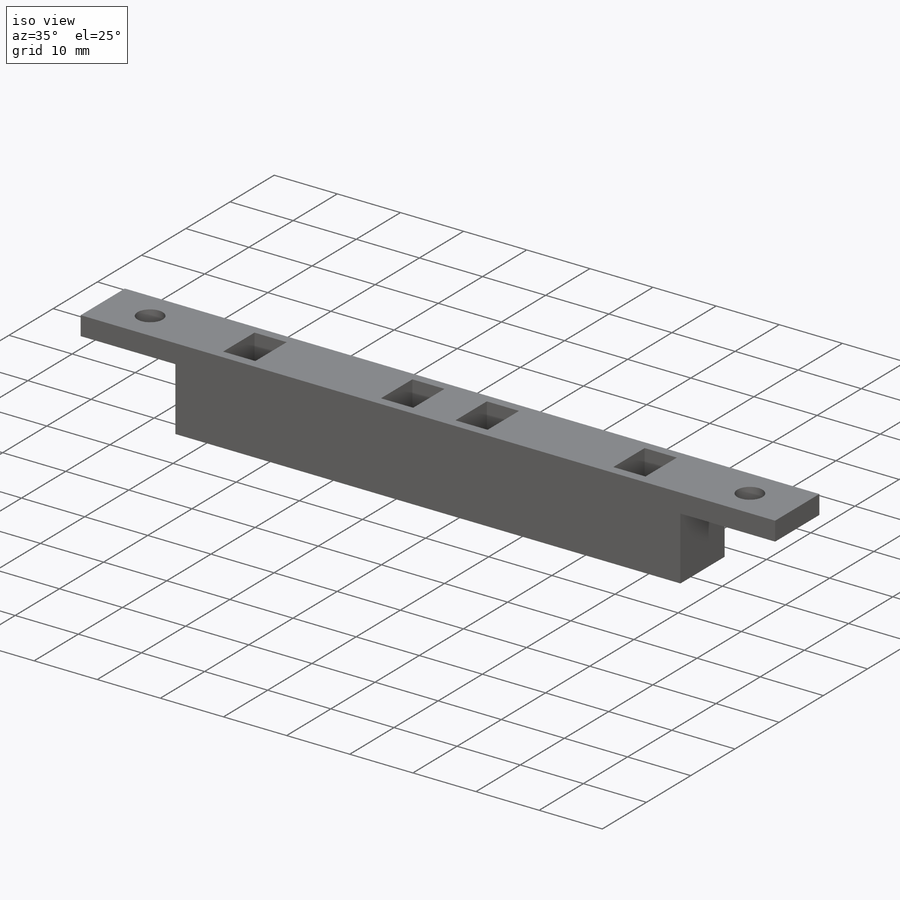
[diagram: iso view]
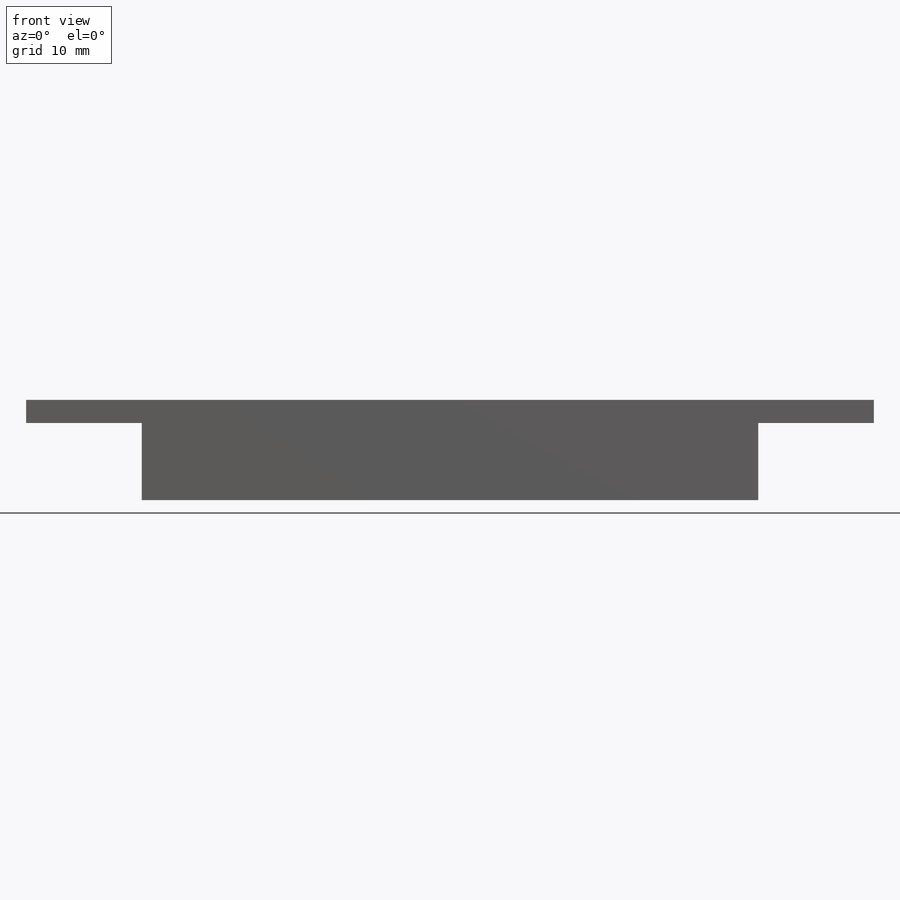
[diagram: front view]
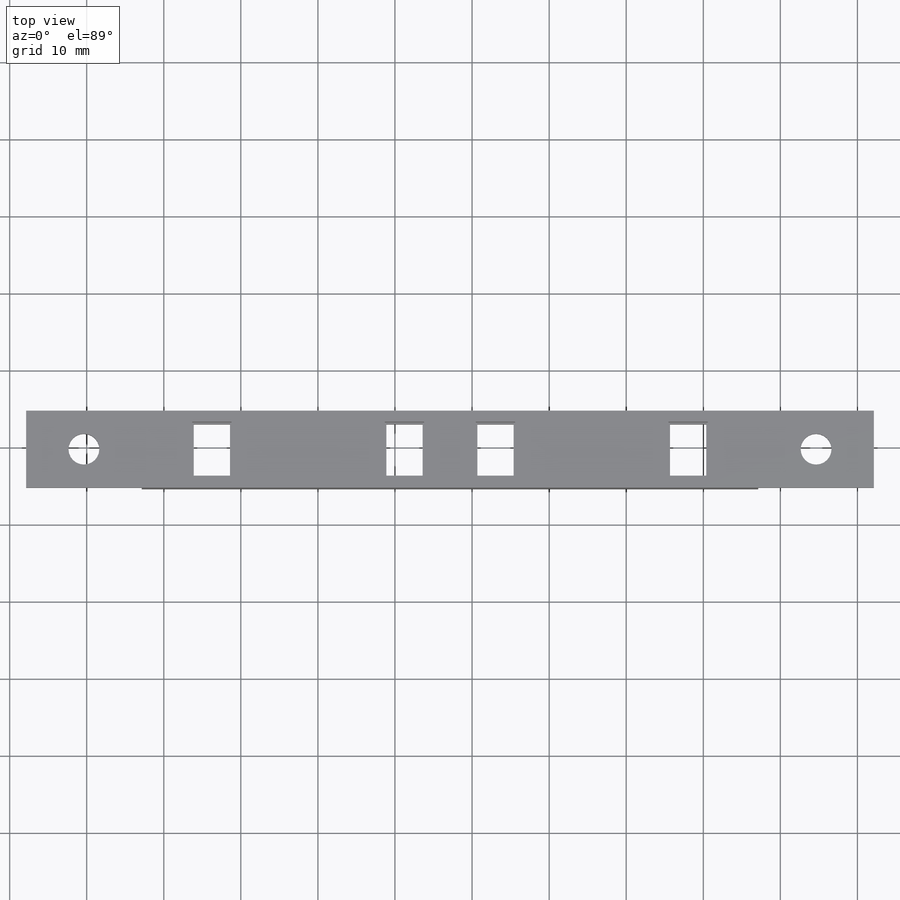
[diagram: top view]
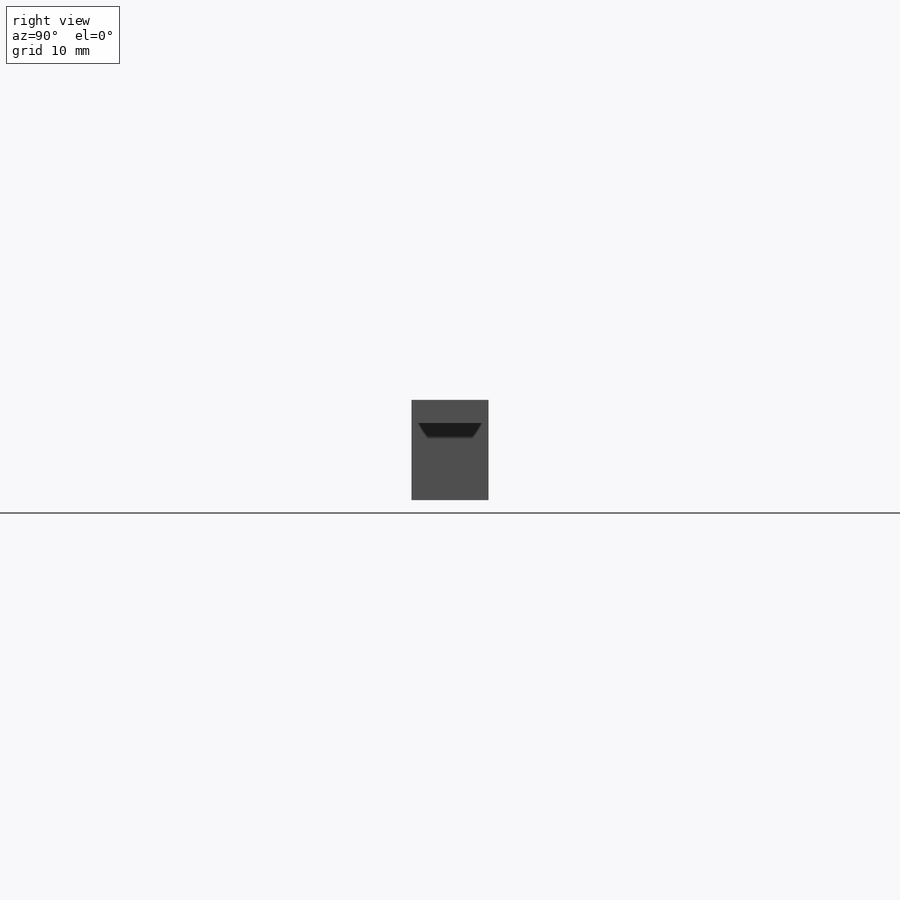
[diagram: right view]
SOLIDWORKS PART (.sldprt)
format: sldprt  version: not decoded by parser v0  size: 366,080 bytes
history: native  units: mm
features: sketch x13, cut_extrude x3, extrude x2, material x1 (+11 scaffold rows collapsed)
feature tree (30):
  scaffold x11  (default folders/planes/origin — collapsed)
  material  "Material <not specified>"
  sketch  "Sketch1"  dims[D1=80.0mm D2=10.0mm]
  extrude  "Boss-Extrude1"  Depth=10mm
  sketch  "Sketch2"  dims[D1=8.25mm D2=4.7mm D3=6.7mm D4=2.0 D5=2.0]
  cut_extrude  "Cut-Extrude1"  Depth=7mm
  sketch  "Sketch3"  dims[D1=1.95mm]
  sketch  "Sketch4"  dims[c1.D1=0.25mm c1.D2=0.25mm c1.D3=1.0mm c1.D4=1.0mm c1.D5=0.3mm c1.D6=0.25mm c1.D7=1.3mm c1.D8=1.3mm c2.D1=0.3mm]
  sketch  "Sketch5"
  sketch  "Sketch6"  dims[D1=0.3mm D2=0.3mm D3=1.3mm D4=1.3mm]
  sketch  "Sketch8"
  sketch  "Sketch9"  dims[D1=0.3mm D2=0.3mm D3=1.3mm D4=1.3mm]
  sketch  "Sketch10"
  sketch  "Sketch11"  dims[D1=0.3mm D2=0.3mm D3=1.3mm D4=1.3mm]
  sketch  "Sketch12"  dims[D1=15.0mm D2=15.0mm]
  extrude  "Boss-Extrude2"  Depth=3mm
  sketch  "Sketch13"  dims[D1=0.2mm D2=0.2mm D3=0.2mm D4=0.2mm D5=0.2mm D6=0.2mm D7=0.2mm D8=0.2mm D9=0.2mm D10=0.2mm D11=0.2mm D12=0.2mm D13=0.2mm D14=0.2mm D15=0.2mm D16=0.2mm]
  cut_extrude  "Cut-Extrude2"  Depth=5.5mm
  sketch  "Sketch14"  dims[c1.D1=~4.768809mm c1.D2=4.0mm c2.D1=7.5mm]
  cut_extrude  "Cut-Extrude3"  Depth=10mm
decode coverage: 15 of 18 modeling features carry decoded parameters
note: ~ marks probable driven/reference dimensions
note: suppression state not decoded; provenance and decode notes live in map.json
